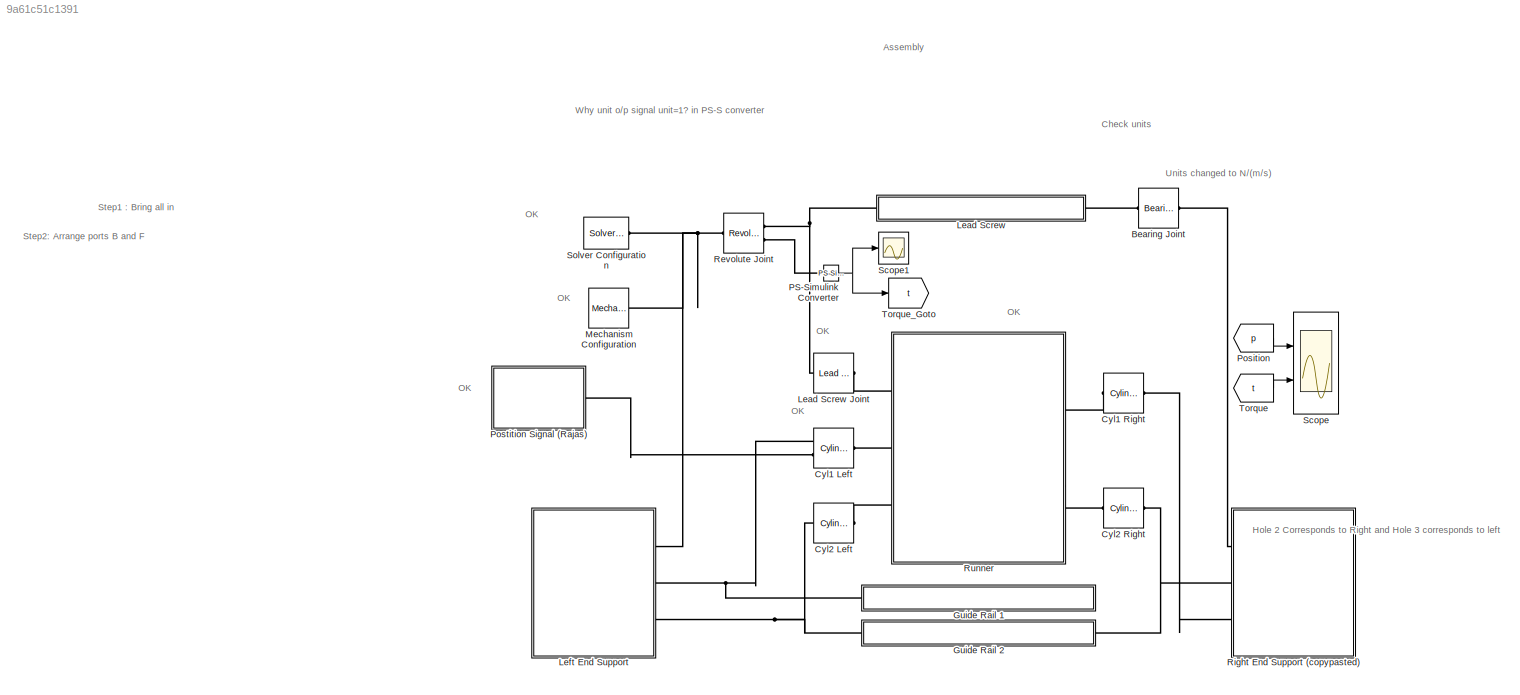
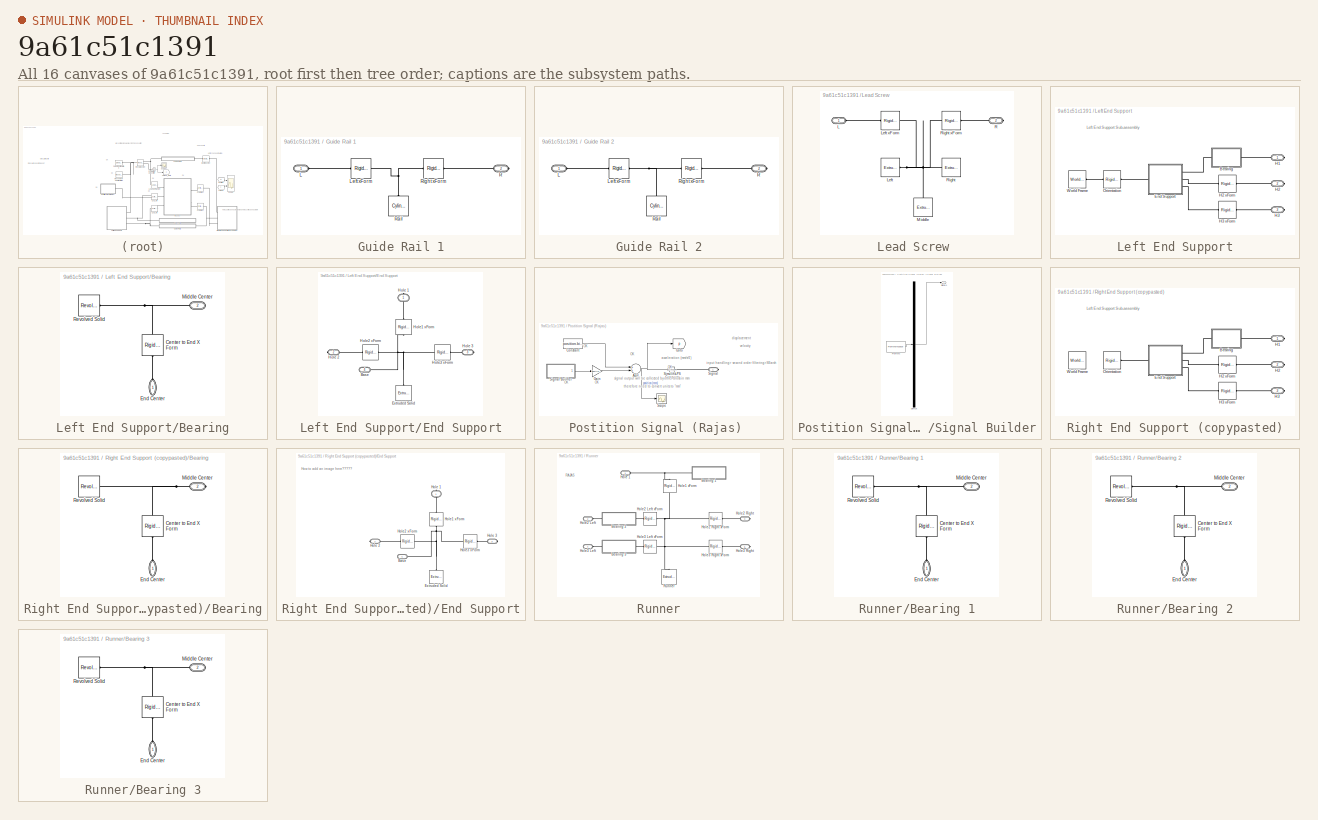
[diagram: thumbnail index - all 16 canvases of the model, root first then tree order]
MODEL slx_9a61c51c1391
KIND model
CONFIG AbsTol = auto
CONFIG EnableMultiTasking = off
CONFIG FixedStep = auto
CONFIG MaxStep = auto
CONFIG MinStep = auto
CONFIG RelTol = 1e-3
CONFIG SampleTimeConstraint = Unconstrained
CONFIG Solver = VariableStepAuto
CONFIG SolverName = VariableStepAuto
CONFIG StartTime = 0.0
CONFIG StopTime = 10.0
BLOCK [Reference] Bearing Joint  REF=sm_lib/Joints/Bearing Joint
  Ports = [0, 0, 0, 0, 0, 1, 1]
  SourceBlock = sm_lib/Joints/Bearing Joint
  SourceProductBaseCode = MS
  SourceProductName = Simscape Multibody
  SourceType = Bearing Joint
BLOCK [Reference] Cyl1 Left  REF=sm_lib/Joints/Cylindrical
Joint
  Ports = [0, 0, 0, 0, 0, 2, 1]
  SourceBlock = sm_lib/Joints/Cylindrical\nJoint
  SourceProductBaseCode = MS
  SourceProductName = Simscape Multibody
  SourceType = Cylindrical\nJoint
BLOCK [Reference] Cyl1 Right  REF=sm_lib/Joints/Cylindrical
Joint
  Ports = [0, 0, 0, 0, 0, 1, 1]
  SourceBlock = sm_lib/Joints/Cylindrical\nJoint
  SourceProductBaseCode = MS
  SourceProductName = Simscape Multibody
  SourceType = Cylindrical\nJoint
BLOCK [Reference] Cyl2 Left  REF=sm_lib/Joints/Cylindrical
Joint
  Ports = [0, 0, 0, 0, 0, 1, 1]
  SourceBlock = sm_lib/Joints/Cylindrical\nJoint
  SourceProductBaseCode = MS
  SourceProductName = Simscape Multibody
  SourceType = Cylindrical\nJoint
BLOCK [Reference] Cyl2 Right  REF=sm_lib/Joints/Cylindrical
Joint
  Ports = [0, 0, 0, 0, 0, 1, 1]
  SourceBlock = sm_lib/Joints/Cylindrical\nJoint
  SourceProductBaseCode = MS
  SourceProductName = Simscape Multibody
  SourceType = Cylindrical\nJoint
BLOCK [SubSystem] Guide Rail 1
  Ports = [0, 0, 0, 0, 0, 1, 1]
  RequestExecContextInheritance = off
BLOCK [PMIOPort] Guide Rail 1/L
  Side = Left
BLOCK [Reference] Guide Rail 1/Left xForm  REF=sm_lib/Frames and
Transforms/Rigid
Transform
  Ports = [0, 0, 0, 0, 0, 1, 1]
  SourceBlock = sm_lib/Frames and\nTransforms/Rigid\nTransform
  SourceProductBaseCode = MS
  SourceProductName = Simscape Multibody
  SourceType = Rigid\nTransform
BLOCK [PMIOPort] Guide Rail 1/R
  Port = 2
  Side = Right
BLOCK [Reference] Guide Rail 1/Rail  REF=sm_lib/Body Elements/Cylindrical Solid
  Ports = [0, 0, 0, 0, 0, 0, 1]
  SourceBlock = sm_lib/Body Elements/Cylindrical Solid
  SourceProductBaseCode = MS
  SourceProductName = Simscape Multibody
  SourceType = Cylindrical Solid
BLOCK [Reference] Guide Rail 1/Right xForm   REF=sm_lib/Frames and
Transforms/Rigid
Transform
  Ports = [0, 0, 0, 0, 0, 1, 1]
  SourceBlock = sm_lib/Frames and\nTransforms/Rigid\nTransform
  SourceProductBaseCode = MS
  SourceProductName = Simscape Multibody
  SourceType = Rigid\nTransform
BLOCK [SubSystem] Guide Rail 2
  Ports = [0, 0, 0, 0, 0, 1, 1]
  RequestExecContextInheritance = off
BLOCK [PMIOPort] Guide Rail 2/L
  Side = Left
BLOCK [Reference] Guide Rail 2/Left xForm  REF=sm_lib/Frames and
Transforms/Rigid
Transform
  Ports = [0, 0, 0, 0, 0, 1, 1]
  SourceBlock = sm_lib/Frames and\nTransforms/Rigid\nTransform
  SourceProductBaseCode = MS
  SourceProductName = Simscape Multibody
  SourceType = Rigid\nTransform
BLOCK [PMIOPort] Guide Rail 2/R
  Port = 2
  Side = Right
BLOCK [Reference] Guide Rail 2/Rail  REF=sm_lib/Body Elements/Cylindrical Solid
  Ports = [0, 0, 0, 0, 0, 0, 1]
  SourceBlock = sm_lib/Body Elements/Cylindrical Solid
  SourceProductBaseCode = MS
  SourceProductName = Simscape Multibody
  SourceType = Cylindrical Solid
BLOCK [Reference] Guide Rail 2/Right xForm   REF=sm_lib/Frames and
Transforms/Rigid
Transform
  Ports = [0, 0, 0, 0, 0, 1, 1]
  SourceBlock = sm_lib/Frames and\nTransforms/Rigid\nTransform
  SourceProductBaseCode = MS
  SourceProductName = Simscape Multibody
  SourceType = Rigid\nTransform
BLOCK [SubSystem] Lead Screw 
  Ports = [0, 0, 0, 0, 0, 1, 1]
  RequestExecContextInheritance = off
BLOCK [PMIOPort] Lead Screw /L 
  Side = Left
BLOCK [Reference] Lead Screw /Left   REF=sm_lib/Body Elements/Extruded Solid
  Ports = [0, 0, 0, 0, 0, 0, 1]
  SourceBlock = sm_lib/Body Elements/Extruded Solid
  SourceProductBaseCode = MS
  SourceProductName = Simscape Multibody
  SourceType = Extruded Solid
BLOCK [Reference] Lead Screw /Left xForm  REF=sm_lib/Frames and
Transforms/Rigid
Transform
  Ports = [0, 0, 0, 0, 0, 1, 1]
  SourceBlock = sm_lib/Frames and\nTransforms/Rigid\nTransform
  SourceProductBaseCode = MS
  SourceProductName = Simscape Multibody
  SourceType = Rigid\nTransform
BLOCK [Reference] Lead Screw /Middle  REF=sm_lib/Body Elements/Extruded Solid
  Ports = [0, 0, 0, 0, 0, 0, 1]
  SourceBlock = sm_lib/Body Elements/Extruded Solid
  SourceProductBaseCode = MS
  SourceProductName = Simscape Multibody
  SourceType = Extruded Solid
BLOCK [PMIOPort] Lead Screw /R 
  Port = 2
  Side = Right
BLOCK [Reference] Lead Screw /Right   REF=sm_lib/Body Elements/Extruded Solid
  Ports = [0, 0, 0, 0, 0, 0, 1]
  SourceBlock = sm_lib/Body Elements/Extruded Solid
  SourceProductBaseCode = MS
  SourceProductName = Simscape Multibody
  SourceType = Extruded Solid
BLOCK [Reference] Lead Screw /Right xForm   REF=sm_lib/Frames and
Transforms/Rigid
Transform
  Ports = [0, 0, 0, 0, 0, 1, 1]
  SourceBlock = sm_lib/Frames and\nTransforms/Rigid\nTransform
  SourceProductBaseCode = MS
  SourceProductName = Simscape Multibody
  SourceType = Rigid\nTransform
BLOCK [Reference] Lead Screw Joint  REF=sm_lib/Joints/Lead Screw
Joint
  Ports = [0, 0, 0, 0, 0, 1, 1]
  SourceBlock = sm_lib/Joints/Lead Screw\nJoint
  SourceProductBaseCode = MS
  SourceProductName = Simscape Multibody
  SourceType = Lead Screw\nJoint
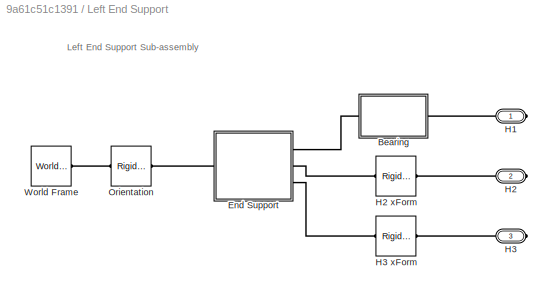
BLOCK [SubSystem] Left End Support
  Ports = [0, 0, 0, 0, 0, 0, 3]
  RequestExecContextInheritance = off
BLOCK [SubSystem] Left End Support/Bearing
  Ports = [0, 0, 0, 0, 0, 1, 1]
  RequestExecContextInheritance = off
BLOCK [Reference] Left End Support/Bearing/Center to End X Form  REF=sm_lib/Frames and
Transforms/Rigid
Transform
  Ports = [0, 0, 0, 0, 0, 1, 1]
  SourceBlock = sm_lib/Frames and\nTransforms/Rigid\nTransform
  SourceProductBaseCode = MS
  SourceProductName = Simscape Multibody
  SourceType = Rigid\nTransform
BLOCK [PMIOPort] Left End Support/Bearing/End Center
  Side = Left
BLOCK [PMIOPort] Left End Support/Bearing/Middle Center
  Port = 2
  Side = Right
BLOCK [Reference] Left End Support/Bearing/Revolved Solid  REF=sm_lib/Body Elements/Revolved Solid
  Ports = [0, 0, 0, 0, 0, 0, 1]
  SourceBlock = sm_lib/Body Elements/Revolved Solid
  SourceProductBaseCode = MS
  SourceProductName = Simscape Multibody
  SourceType = Revolved Solid
BLOCK [SubSystem] Left End Support/End Support
  Ports = [0, 0, 0, 0, 0, 1, 3]
  RequestExecContextInheritance = off
BLOCK [PMIOPort] Left End Support/End Support/Base
  Port = 4
  Side = Left
BLOCK [Reference] Left End Support/End Support/Extruded Solid  REF=sm_lib/Body Elements/Extruded Solid
  Ports = [0, 0, 0, 0, 0, 0, 1]
  SourceBlock = sm_lib/Body Elements/Extruded Solid
  SourceProductBaseCode = MS
  SourceProductName = Simscape Multibody
  SourceType = Extruded Solid
BLOCK [PMIOPort] Left End Support/End Support/Hole 1
  Side = Right
BLOCK [PMIOPort] Left End Support/End Support/Hole 2
  Port = 2
  Side = Right
BLOCK [PMIOPort] Left End Support/End Support/Hole 3
  Port = 3
  Side = Right
BLOCK [Reference] Left End Support/End Support/Hole1 xForm  REF=sm_lib/Frames and
Transforms/Rigid
Transform
  Ports = [0, 0, 0, 0, 0, 1, 1]
  SourceBlock = sm_lib/Frames and\nTransforms/Rigid\nTransform
  SourceProductBaseCode = MS
  SourceProductName = Simscape Multibody
  SourceType = Rigid\nTransform
BLOCK [Reference] Left End Support/End Support/Hole2 xForm  REF=sm_lib/Frames and
Transforms/Rigid
Transform
  Ports = [0, 0, 0, 0, 0, 1, 1]
  SourceBlock = sm_lib/Frames and\nTransforms/Rigid\nTransform
  SourceProductBaseCode = MS
  SourceProductName = Simscape Multibody
  SourceType = Rigid\nTransform
BLOCK [Reference] Left End Support/End Support/Hole3 xForm  REF=sm_lib/Frames and
Transforms/Rigid
Transform
  Ports = [0, 0, 0, 0, 0, 1, 1]
  SourceBlock = sm_lib/Frames and\nTransforms/Rigid\nTransform
  SourceProductBaseCode = MS
  SourceProductName = Simscape Multibody
  SourceType = Rigid\nTransform
BLOCK [PMIOPort] Left End Support/H1
  Side = Right
BLOCK [PMIOPort] Left End Support/H2
  Port = 2
  Side = Right
BLOCK [Reference] Left End Support/H2 xForm  REF=sm_lib/Frames and
Transforms/Rigid
Transform
  Ports = [0, 0, 0, 0, 0, 1, 1]
  SourceBlock = sm_lib/Frames and\nTransforms/Rigid\nTransform
  SourceProductBaseCode = MS
  SourceProductName = Simscape Multibody
  SourceType = Rigid\nTransform
BLOCK [PMIOPort] Left End Support/H3
  Port = 3
  Side = Right
BLOCK [Reference] Left End Support/H3 xForm  REF=sm_lib/Frames and
Transforms/Rigid
Transform
  Ports = [0, 0, 0, 0, 0, 1, 1]
  SourceBlock = sm_lib/Frames and\nTransforms/Rigid\nTransform
  SourceProductBaseCode = MS
  SourceProductName = Simscape Multibody
  SourceType = Rigid\nTransform
BLOCK [Reference] Left End Support/Orientation  REF=sm_lib/Frames and
Transforms/Rigid
Transform
  Ports = [0, 0, 0, 0, 0, 1, 1]
  SourceBlock = sm_lib/Frames and\nTransforms/Rigid\nTransform
  SourceProductBaseCode = MS
  SourceProductName = Simscape Multibody
  SourceType = Rigid\nTransform
BLOCK [Reference] Left End Support/World Frame  REF=sm_lib/Frames and
Transforms/World Frame
  Ports = [0, 0, 0, 0, 0, 0, 1]
  SourceBlock = sm_lib/Frames and\nTransforms/World Frame
  SourceProductBaseCode = MS
  SourceProductName = Simscape Multibody
  SourceType = World Frame
BLOCK [Reference] Mechanism Configuration  REF=sm_lib/Utilities/Mechanism
Configuration
  Ports = [0, 0, 0, 0, 0, 0, 1]
  SourceBlock = sm_lib/Utilities/Mechanism\nConfiguration
  SourceProductBaseCode = MS
  SourceProductName = Simscape Multibody
  SourceType = Mechanism\nConfiguration
BLOCK [Reference] PS-Simulink Converter  REF=nesl_utility/PS-Simulink
Converter
  Ports = [0, 1, 0, 0, 0, 1]
  SourceBlock = nesl_utility/PS-Simulink\nConverter
  SourceProductBaseCode = SS
  SourceProductName = Simscape
  SourceType = PS-Simulink\nConverter
BLOCK [From] Position
  GotoTag = p
  TagVisibility = global
BLOCK [SubSystem] Postition Signal (Rajas) 
  Ports = [0, 0, 0, 0, 0, 0, 1]
  RequestExecContextInheritance = off
BLOCK [Sum] Postition Signal (Rajas) /Add
  InputSameDT = off
  OutDataTypeStr = Inherit: Inherit via internal rule
  Ports = [2, 1]
  SaturateOnIntegerOverflow = off
BLOCK [Constant] Postition Signal (Rajas) /Constant
  Value = position.bias
BLOCK [Gain] Postition Signal (Rajas) /Gain
  Gain = position.amplitude
  OutDataTypeStr = Inherit: Inherit via internal rule
  ParamDataTypeStr = Inherit: Inherit via internal rule
  SaturateOnIntegerOverflow = off
BLOCK [Goto] Postition Signal (Rajas) /Goto
  GotoTag = p
  TagVisibility = global
BLOCK [Scope] Postition Signal (Rajas) /Scope
  Floating = off
  NumInputPorts = 1
  Ports = [1]
  ScopeSpecificationString = Simulink.scopes.TimeScopeBlockCfg('CurrentConfiguration', extmgr.ConfigurationSet(extmgr.Configuration('Core','General UI',true),extmgr.Configuration('Core','Source UI',true),extmgr.Configuration('Sources','WiredSimulink',true,'DataLoggingVariableName','ScopeData1'),extmgr.Configuration('Visuals','Time Domain',true,'SerializedDisplays',{struct('MinYLimReal','0','MaxYLimReal','450','YLabelReal','',...<+1334ch>
BLOCK [PMIOPort] Postition Signal (Rajas) /Signal
  Side = Right
BLOCK [SubSystem] Postition Signal (Rajas) /Signal Builder
  ClipboardFcn = sigbuilder_block('clipboard');
  CloseFcn = sigbuilder_block('close');
  ContinueFcn = sigbuilder_block('continue');
  CopyFcn = sigbuilder_block('copy');
  DeleteFcn = sigbuilder_block('delete');
  LoadFcn = sigbuilder_block('load');
  MaskHideContents = on
  ModelCloseFcn = sigbuilder_block('modelClose');
  NameChangeFcn = sigbuilder_block('namechange');
  OpenFcn = sigbuilder_block('open',[-1.2 161.4 550.8 283.2 ]);
  PauseFcn = sigbuilder_block('pause');
  Ports = [0, 1]
  PreSaveFcn = sigbuilder_block('preSave');
  RequestExecContextInheritance = off
  StartFcn = sigbuilder_block('start');
  StopFcn = sigbuilder_block('stop');
  Tag = STV Subsys
BLOCK [Demux] Postition Signal (Rajas) /Signal Builder/Demux
  Outputs = 1
  Ports = [1, 1]
  Tag = STV Demux
BLOCK [FromWorkspace] Postition Signal (Rajas) /Signal Builder/FromWs
  SampleTime = 0
  Tag = STV FromWs
  VariableName = tuvar
  ZeroCross = on
BLOCK [Outport] Postition Signal (Rajas) /Signal Builder/Signal 1
  IconDisplay = Port number
  Tag = STV Outport
BLOCK [Reference] Postition Signal (Rajas) /Simulink-PS Converter  REF=nesl_utility/Simulink-PS
Converter
  Ports = [1, 0, 0, 0, 0, 0, 1]
  SourceBlock = nesl_utility/Simulink-PS\nConverter
  SourceProductBaseCode = SS
  SourceProductName = Simscape
  SourceType = Simulink-PS\nConverter
BLOCK [Reference] Revolute Joint  REF=sm_lib/Joints/Revolute Joint
  Ports = [0, 0, 0, 0, 0, 1, 2]
  SourceBlock = sm_lib/Joints/Revolute Joint
  SourceProductBaseCode = MS
  SourceProductName = Simscape Multibody
  SourceType = Revolute Joint
BLOCK [SubSystem] Right End Support (copypasted)
  Ports = [0, 0, 0, 0, 0, 0, 3]
  RequestExecContextInheritance = off
BLOCK [SubSystem] Right End Support (copypasted)/Bearing
  Ports = [0, 0, 0, 0, 0, 1, 1]
  RequestExecContextInheritance = off
BLOCK [Reference] Right End Support (copypasted)/Bearing/Center to End X Form  REF=sm_lib/Frames and
Transforms/Rigid
Transform
  Ports = [0, 0, 0, 0, 0, 1, 1]
  SourceBlock = sm_lib/Frames and\nTransforms/Rigid\nTransform
  SourceProductBaseCode = MS
  SourceProductName = Simscape Multibody
  SourceType = Rigid\nTransform
BLOCK [PMIOPort] Right End Support (copypasted)/Bearing/End Center
  Side = Left
BLOCK [PMIOPort] Right End Support (copypasted)/Bearing/Middle Center
  Port = 2
  Side = Right
BLOCK [Reference] Right End Support (copypasted)/Bearing/Revolved Solid  REF=sm_lib/Body Elements/Revolved Solid
  Ports = [0, 0, 0, 0, 0, 0, 1]
  SourceBlock = sm_lib/Body Elements/Revolved Solid
  SourceProductBaseCode = MS
  SourceProductName = Simscape Multibody
  SourceType = Revolved Solid
BLOCK [SubSystem] Right End Support (copypasted)/End Support
  Ports = [0, 0, 0, 0, 0, 1, 3]
  RequestExecContextInheritance = off
BLOCK [PMIOPort] Right End Support (copypasted)/End Support/Base
  Port = 4
  Side = Left
BLOCK [Reference] Right End Support (copypasted)/End Support/Extruded Solid  REF=sm_lib/Body Elements/Extruded Solid
  Ports = [0, 0, 0, 0, 0, 0, 1]
  SourceBlock = sm_lib/Body Elements/Extruded Solid
  SourceProductBaseCode = MS
  SourceProductName = Simscape Multibody
  SourceType = Extruded Solid
BLOCK [PMIOPort] Right End Support (copypasted)/End Support/Hole 1
  Side = Right
BLOCK [PMIOPort] Right End Support (copypasted)/End Support/Hole 2
  Port = 2
  Side = Right
BLOCK [PMIOPort] Right End Support (copypasted)/End Support/Hole 3
  Port = 3
  Side = Right
BLOCK [Reference] Right End Support (copypasted)/End Support/Hole1 xForm  REF=sm_lib/Frames and
Transforms/Rigid
Transform
  Ports = [0, 0, 0, 0, 0, 1, 1]
  SourceBlock = sm_lib/Frames and\nTransforms/Rigid\nTransform
  SourceProductBaseCode = MS
  SourceProductName = Simscape Multibody
  SourceType = Rigid\nTransform
BLOCK [Reference] Right End Support (copypasted)/End Support/Hole2 xForm  REF=sm_lib/Frames and
Transforms/Rigid
Transform
  Ports = [0, 0, 0, 0, 0, 1, 1]
  SourceBlock = sm_lib/Frames and\nTransforms/Rigid\nTransform
  SourceProductBaseCode = MS
  SourceProductName = Simscape Multibody
  SourceType = Rigid\nTransform
BLOCK [Reference] Right End Support (copypasted)/End Support/Hole3 xForm  REF=sm_lib/Frames and
Transforms/Rigid
Transform
  Ports = [0, 0, 0, 0, 0, 1, 1]
  SourceBlock = sm_lib/Frames and\nTransforms/Rigid\nTransform
  SourceProductBaseCode = MS
  SourceProductName = Simscape Multibody
  SourceType = Rigid\nTransform
BLOCK [PMIOPort] Right End Support (copypasted)/H1
  Side = Right
BLOCK [PMIOPort] Right End Support (copypasted)/H2
  Port = 2
  Side = Right
BLOCK [Reference] Right End Support (copypasted)/H2 xForm  REF=sm_lib/Frames and
Transforms/Rigid
Transform
  Ports = [0, 0, 0, 0, 0, 1, 1]
  SourceBlock = sm_lib/Frames and\nTransforms/Rigid\nTransform
  SourceProductBaseCode = MS
  SourceProductName = Simscape Multibody
  SourceType = Rigid\nTransform
BLOCK [PMIOPort] Right End Support (copypasted)/H3
  Port = 3
  Side = Right
BLOCK [Reference] Right End Support (copypasted)/H3 xForm  REF=sm_lib/Frames and
Transforms/Rigid
Transform
  Ports = [0, 0, 0, 0, 0, 1, 1]
  SourceBlock = sm_lib/Frames and\nTransforms/Rigid\nTransform
  SourceProductBaseCode = MS
  SourceProductName = Simscape Multibody
  SourceType = Rigid\nTransform
BLOCK [Reference] Right End Support (copypasted)/Orientation  REF=sm_lib/Frames and
Transforms/Rigid
Transform
  Ports = [0, 0, 0, 0, 0, 1, 1]
  SourceBlock = sm_lib/Frames and\nTransforms/Rigid\nTransform
  SourceProductBaseCode = MS
  SourceProductName = Simscape Multibody
  SourceType = Rigid\nTransform
BLOCK [Reference] Right End Support (copypasted)/World Frame  REF=sm_lib/Frames and
Transforms/World Frame
  Ports = [0, 0, 0, 0, 0, 0, 1]
  SourceBlock = sm_lib/Frames and\nTransforms/World Frame
  SourceProductBaseCode = MS
  SourceProductName = Simscape Multibody
  SourceType = World Frame
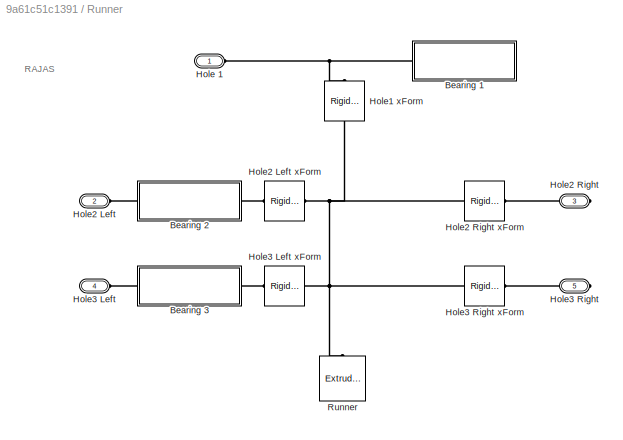
BLOCK [SubSystem] Runner
  Ports = [0, 0, 0, 0, 0, 3, 2]
  RequestExecContextInheritance = off
BLOCK [SubSystem] Runner/Bearing 1
  Ports = [0, 0, 0, 0, 0, 1, 1]
  RequestExecContextInheritance = off
BLOCK [Reference] Runner/Bearing 1/Center to End X Form  REF=sm_lib/Frames and
Transforms/Rigid
Transform
  Ports = [0, 0, 0, 0, 0, 1, 1]
  SourceBlock = sm_lib/Frames and\nTransforms/Rigid\nTransform
  SourceProductBaseCode = MS
  SourceProductName = Simscape Multibody
  SourceType = Rigid\nTransform
BLOCK [PMIOPort] Runner/Bearing 1/End Center
  Side = Left
BLOCK [PMIOPort] Runner/Bearing 1/Middle Center
  Port = 2
  Side = Right
BLOCK [Reference] Runner/Bearing 1/Revolved Solid  REF=sm_lib/Body Elements/Revolved Solid
  Ports = [0, 0, 0, 0, 0, 0, 1]
  SourceBlock = sm_lib/Body Elements/Revolved Solid
  SourceProductBaseCode = MS
  SourceProductName = Simscape Multibody
  SourceType = Revolved Solid
BLOCK [SubSystem] Runner/Bearing 2
  Ports = [0, 0, 0, 0, 0, 1, 1]
  RequestExecContextInheritance = off
BLOCK [Reference] Runner/Bearing 2/Center to End X Form  REF=sm_lib/Frames and
Transforms/Rigid
Transform
  Ports = [0, 0, 0, 0, 0, 1, 1]
  SourceBlock = sm_lib/Frames and\nTransforms/Rigid\nTransform
  SourceProductBaseCode = MS
  SourceProductName = Simscape Multibody
  SourceType = Rigid\nTransform
BLOCK [PMIOPort] Runner/Bearing 2/End Center
  Side = Left
BLOCK [PMIOPort] Runner/Bearing 2/Middle Center
  Port = 2
  Side = Right
BLOCK [Reference] Runner/Bearing 2/Revolved Solid  REF=sm_lib/Body Elements/Revolved Solid
  Ports = [0, 0, 0, 0, 0, 0, 1]
  SourceBlock = sm_lib/Body Elements/Revolved Solid
  SourceProductBaseCode = MS
  SourceProductName = Simscape Multibody
  SourceType = Revolved Solid
BLOCK [SubSystem] Runner/Bearing 3
  Ports = [0, 0, 0, 0, 0, 1, 1]
  RequestExecContextInheritance = off
BLOCK [Reference] Runner/Bearing 3/Center to End X Form  REF=sm_lib/Frames and
Transforms/Rigid
Transform
  Ports = [0, 0, 0, 0, 0, 1, 1]
  SourceBlock = sm_lib/Frames and\nTransforms/Rigid\nTransform
  SourceProductBaseCode = MS
  SourceProductName = Simscape Multibody
  SourceType = Rigid\nTransform
BLOCK [PMIOPort] Runner/Bearing 3/End Center
  Side = Left
BLOCK [PMIOPort] Runner/Bearing 3/Middle Center
  Port = 2
  Side = Right
BLOCK [Reference] Runner/Bearing 3/Revolved Solid  REF=sm_lib/Body Elements/Revolved Solid
  Ports = [0, 0, 0, 0, 0, 0, 1]
  SourceBlock = sm_lib/Body Elements/Revolved Solid
  SourceProductBaseCode = MS
  SourceProductName = Simscape Multibody
  SourceType = Revolved Solid
BLOCK [PMIOPort] Runner/Hole 1
  Side = Left
BLOCK [Reference] Runner/Hole1 xForm  REF=sm_lib/Frames and
Transforms/Rigid
Transform
  Ports = [0, 0, 0, 0, 0, 1, 1]
  SourceBlock = sm_lib/Frames and\nTransforms/Rigid\nTransform
  SourceProductBaseCode = MS
  SourceProductName = Simscape Multibody
  SourceType = Rigid\nTransform
BLOCK [PMIOPort] Runner/Hole2 Left
  Port = 2
  Side = Left
BLOCK [Reference] Runner/Hole2 Left xForm  REF=sm_lib/Frames and
Transforms/Rigid
Transform
  Ports = [0, 0, 0, 0, 0, 1, 1]
  SourceBlock = sm_lib/Frames and\nTransforms/Rigid\nTransform
  SourceProductBaseCode = MS
  SourceProductName = Simscape Multibody
  SourceType = Rigid\nTransform
BLOCK [PMIOPort] Runner/Hole2 Right
  Port = 3
  Side = Right
BLOCK [Reference] Runner/Hole2 Right xForm  REF=sm_lib/Frames and
Transforms/Rigid
Transform
  Ports = [0, 0, 0, 0, 0, 1, 1]
  SourceBlock = sm_lib/Frames and\nTransforms/Rigid\nTransform
  SourceProductBaseCode = MS
  SourceProductName = Simscape Multibody
  SourceType = Rigid\nTransform
BLOCK [PMIOPort] Runner/Hole3 Left
  Port = 4
  Side = Left
BLOCK [Reference] Runner/Hole3 Left xForm  REF=sm_lib/Frames and
Transforms/Rigid
Transform
  Ports = [0, 0, 0, 0, 0, 1, 1]
  SourceBlock = sm_lib/Frames and\nTransforms/Rigid\nTransform
  SourceProductBaseCode = MS
  SourceProductName = Simscape Multibody
  SourceType = Rigid\nTransform
BLOCK [PMIOPort] Runner/Hole3 Right
  Port = 5
  Side = Right
BLOCK [Reference] Runner/Hole3 Right xForm  REF=sm_lib/Frames and
Transforms/Rigid
Transform
  Ports = [0, 0, 0, 0, 0, 1, 1]
  SourceBlock = sm_lib/Frames and\nTransforms/Rigid\nTransform
  SourceProductBaseCode = MS
  SourceProductName = Simscape Multibody
  SourceType = Rigid\nTransform
BLOCK [Reference] Runner/Runner  REF=sm_lib/Body Elements/Extruded Solid
  Ports = [0, 0, 0, 0, 0, 0, 1]
  SourceBlock = sm_lib/Body Elements/Extruded Solid
  SourceProductBaseCode = MS
  SourceProductName = Simscape Multibody
  SourceType = Extruded Solid
BLOCK [Scope] Scope
  Floating = off
  NumInputPorts = 2
  Ports = [2]
  ScopeSpecificationString = Simulink.scopes.TimeScopeBlockCfg('CurrentConfiguration', extmgr.ConfigurationSet(extmgr.Configuration('Core','General UI',true),extmgr.Configuration('Core','Source UI',true),extmgr.Configuration('Sources','WiredSimulink',true),extmgr.Configuration('Visuals','Time Domain',true,'SerializedDisplays',{struct('MinYLimReal','-10','MaxYLimReal','10','YLabelReal','','MinYLimMag','0','MaxYLimMag','10','Le...<+1984ch>
BLOCK [Scope] Scope1
  Floating = off
  NumInputPorts = 1
  Ports = [1]
  ScopeSpecificationString = Simulink.scopes.TimeScopeBlockCfg('CurrentConfiguration', extmgr.ConfigurationSet(extmgr.Configuration('Core','General UI',true),extmgr.Configuration('Core','Source UI',true),extmgr.Configuration('Sources','WiredSimulink',true,'DataLoggingVariableName','ScopeData2'),extmgr.Configuration('Visuals','Time Domain',true,'SerializedDisplays',{struct('MinYLimReal','-10','MaxYLimReal','10','YLabelReal',''...<+781ch>
BLOCK [Reference] Solver Configuration  REF=nesl_utility/Solver
Configuration
  Ports = [0, 0, 0, 0, 0, 0, 1]
  SourceBlock = nesl_utility/Solver\nConfiguration
  SourceProductBaseCode = SS
  SourceProductName = Simscape
  SourceType = Solver\nConfiguration
BLOCK [From] Torque
  GotoTag = t
BLOCK [Goto] Torque_Goto
  GotoTag = t
ANNOTATION (root): Assembly
ANNOTATION (root): Check units
ANNOTATION (root): Hole 2 Corresponds to Right and Hole 3 corresponds to left
ANNOTATION (root): OK
ANNOTATION (root): Step1 : Bring all in
ANNOTATION (root): Step2: Arrange ports B and F
ANNOTATION (root): Units changed to N/(m/s)
ANNOTATION (root): Why unit o/p signal unit=1? in PS-S converter
ANNOTATION Left End Support: Left End Support Sub-assembly
ANNOTATION Postition Signal (Rajas) : OK
ANNOTATION Postition Signal (Rajas) : acceleration (mm/s^2)
ANNOTATION Postition Signal (Rajas) : displacement
ANNOTATION Postition Signal (Rajas) : input handling> second order filtering>SEarch
ANNOTATION Postition Signal (Rajas) : signal output will be collected by other block in mm
ANNOTATION Postition Signal (Rajas) : therefore need to convert units to "mm"
ANNOTATION Postition Signal (Rajas) : velocity
ANNOTATION Right End Support (copypasted): Left End Support Sub-assembly
ANNOTATION Right End Support (copypasted)/End Support: How to add an image here?????
ANNOTATION Runner: RAJAS
NET PS-Simulink Converter:1 -> Scope1:1, Torque_Goto:1
LINE Position:1 -> Scope:1
NET Postition Signal (Rajas) /Add:1 -> Postition Signal (Rajas) /Goto:1, Postition Signal (Rajas) /Scope:1, Postition Signal (Rajas) /Simulink-PS Converter:1
LINE Postition Signal (Rajas) /Constant:1 -> Postition Signal (Rajas) /Add:1
LINE Postition Signal (Rajas) /Gain:1 -> Postition Signal (Rajas) /Add:2
LINE Postition Signal (Rajas) /Signal Builder:1 -> Postition Signal (Rajas) /Gain:1
LINE Torque:1 -> Scope:2
PLINE Bearing Joint:LConn1 -- Right End Support (copypasted):RConn1
PLINE Bearing Joint:RConn1 -- Lead Screw :RConn1
PNET net1: Cyl1 Left:LConn1 -- Guide Rail 1:LConn1 -- Left End Support:RConn2
PLINE Cyl1 Left:LConn2 -- Postition Signal (Rajas) :RConn1
PLINE Cyl1 Left:RConn1 -- Runner:LConn2
PLINE Cyl1 Right:LConn1 -- Right End Support (copypasted):RConn3
PLINE Cyl1 Right:RConn1 -- Runner:RConn1
PNET net2: Cyl2 Left:LConn1 -- Guide Rail 2:LConn1 -- Left End Support:RConn3
PLINE Cyl2 Left:RConn1 -- Runner:LConn3
PNET net3: Cyl2 Right:LConn1 -- Guide Rail 2:RConn1 -- Right End Support (copypasted):RConn2
PLINE Cyl2 Right:RConn1 -- Runner:RConn2
PLINE Guide Rail 1/L:RConn1 -- Guide Rail 1/Left xForm:RConn1
PNET net4: Guide Rail 1/Left xForm:LConn1 -- Guide Rail 1/Rail:RConn1 -- Guide Rail 1/Right xForm :LConn1
PLINE Guide Rail 1/R:RConn1 -- Guide Rail 1/Right xForm :RConn1
PLINE Guide Rail 2/L:RConn1 -- Guide Rail 2/Left xForm:RConn1
PNET net5: Guide Rail 2/Left xForm:LConn1 -- Guide Rail 2/Rail:RConn1 -- Guide Rail 2/Right xForm :LConn1
PLINE Guide Rail 2/R:RConn1 -- Guide Rail 2/Right xForm :RConn1
PLINE Lead Screw /L :RConn1 -- Lead Screw /Left xForm:RConn1
PNET net6: Lead Screw /Left :RConn1 -- Lead Screw /Left xForm:LConn1 -- Lead Screw /Middle:RConn1 -- Lead Screw /Right :RConn1 -- Lead Screw /Right xForm :LConn1
PLINE Lead Screw /R :RConn1 -- Lead Screw /Right xForm :RConn1
PNET net7: Lead Screw :LConn1 -- Lead Screw Joint:LConn1 -- Revolute Joint:RConn1
PLINE Lead Screw Joint:RConn1 -- Runner:LConn1
PNET net8: Left End Support/Bearing/Center to End X Form:LConn1 -- Left End Support/Bearing/Middle Center:RConn1 -- Left End Support/Bearing/Revolved Solid:RConn1
PLINE Left End Support/Bearing/Center to End X Form:RConn1 -- Left End Support/Bearing/End Center:RConn1
PLINE Left End Support/Bearing:LConn1 -- Left End Support/H1:RConn1
PLINE Left End Support/Bearing:RConn1 -- Left End Support/End Support:RConn1
PNET net9: Left End Support/End Support/Base:RConn1 -- Left End Support/End Support/Extruded Solid:RConn1 -- Left End Support/End Support/Hole1 xForm:LConn1 -- Left End Support/End Support/Hole2 xForm:LConn1 -- Left End Support/End Support/Hole3 xForm:LConn1
PLINE Left End Support/End Support/Hole 1:RConn1 -- Left End Support/End Support/Hole1 xForm:RConn1
PLINE Left End Support/End Support/Hole 2:RConn1 -- Left End Support/End Support/Hole2 xForm:RConn1
PLINE Left End Support/End Support/Hole 3:RConn1 -- Left End Support/End Support/Hole3 xForm:RConn1
PLINE Left End Support/End Support:LConn1 -- Left End Support/Orientation:RConn1
PLINE Left End Support/End Support:RConn2 -- Left End Support/H2 xForm:LConn1
PLINE Left End Support/End Support:RConn3 -- Left End Support/H3 xForm:LConn1
PLINE Left End Support/H2 xForm:RConn1 -- Left End Support/H2:RConn1
PLINE Left End Support/H3 xForm:RConn1 -- Left End Support/H3:RConn1
PLINE Left End Support/Orientation:LConn1 -- Left End Support/World Frame:RConn1
PNET net10: Left End Support:RConn1 -- Mechanism Configuration:RConn1 -- Revolute Joint:LConn1 -- Solver Configuration:RConn1
PLINE PS-Simulink Converter:LConn1 -- Revolute Joint:RConn2
PLINE Postition Signal (Rajas) /Signal:RConn1 -- Postition Signal (Rajas) /Simulink-PS Converter:RConn1
PNET net11: Right End Support (copypasted)/Bearing/Center to End X Form:LConn1 -- Right End Support (copypasted)/Bearing/Middle Center:RConn1 -- Right End Support (copypasted)/Bearing/Revolved Solid:RConn1
PLINE Right End Support (copypasted)/Bearing/Center to End X Form:RConn1 -- Right End Support (copypasted)/Bearing/End Center:RConn1
PLINE Right End Support (copypasted)/Bearing:LConn1 -- Right End Support (copypasted)/H1:RConn1
PLINE Right End Support (copypasted)/Bearing:RConn1 -- Right End Support (copypasted)/End Support:RConn1
PNET net12: Right End Support (copypasted)/End Support/Base:RConn1 -- Right End Support (copypasted)/End Support/Extruded Solid:RConn1 -- Right End Support (copypasted)/End Support/Hole1 xForm:LConn1 -- Right End Support (copypasted)/End Support/Hole2 xForm:LConn1 -- Right End Support (copypasted)/End Support/Hole3 xForm:LConn1
PLINE Right End Support (copypasted)/End Support/Hole 1:RConn1 -- Right End Support (copypasted)/End Support/Hole1 xForm:RConn1
PLINE Right End Support (copypasted)/End Support/Hole 2:RConn1 -- Right End Support (copypasted)/End Support/Hole2 xForm:RConn1
PLINE Right End Support (copypasted)/End Support/Hole 3:RConn1 -- Right End Support (copypasted)/End Support/Hole3 xForm:RConn1
PLINE Right End Support (copypasted)/End Support:LConn1 -- Right End Support (copypasted)/Orientation:RConn1
PLINE Right End Support (copypasted)/End Support:RConn2 -- Right End Support (copypasted)/H2 xForm:LConn1
PLINE Right End Support (copypasted)/End Support:RConn3 -- Right End Support (copypasted)/H3 xForm:LConn1
PLINE Right End Support (copypasted)/H2 xForm:RConn1 -- Right End Support (copypasted)/H2:RConn1
PLINE Right End Support (copypasted)/H3 xForm:RConn1 -- Right End Support (copypasted)/H3:RConn1
PNET net13: Runner/Bearing 1/Center to End X Form:LConn1 -- Runner/Bearing 1/Middle Center:RConn1 -- Runner/Bearing 1/Revolved Solid:RConn1
PLINE Runner/Bearing 1/Center to End X Form:RConn1 -- Runner/Bearing 1/End Center:RConn1
PNET net14: Runner/Bearing 1:RConn1 -- Runner/Hole 1:RConn1 -- Runner/Hole1 xForm:RConn1
PNET net15: Runner/Bearing 2/Center to End X Form:LConn1 -- Runner/Bearing 2/Middle Center:RConn1 -- Runner/Bearing 2/Revolved Solid:RConn1
PLINE Runner/Bearing 2/Center to End X Form:RConn1 -- Runner/Bearing 2/End Center:RConn1
PLINE Runner/Bearing 2:LConn1 -- Runner/Hole2 Left:RConn1
PLINE Runner/Bearing 2:RConn1 -- Runner/Hole2 Left xForm:RConn1
PNET net16: Runner/Bearing 3/Center to End X Form:LConn1 -- Runner/Bearing 3/Middle Center:RConn1 -- Runner/Bearing 3/Revolved Solid:RConn1
PLINE Runner/Bearing 3/Center to End X Form:RConn1 -- Runner/Bearing 3/End Center:RConn1
PLINE Runner/Bearing 3:LConn1 -- Runner/Hole3 Left:RConn1
PLINE Runner/Bearing 3:RConn1 -- Runner/Hole3 Left xForm:RConn1
PNET net17: Runner/Hole1 xForm:LConn1 -- Runner/Hole2 Left xForm:LConn1 -- Runner/Hole2 Right xForm:LConn1 -- Runner/Hole3 Left xForm:LConn1 -- Runner/Hole3 Right xForm:LConn1 -- Runner/Runner:RConn1
PLINE Runner/Hole2 Right xForm:RConn1 -- Runner/Hole2 Right:RConn1
PLINE Runner/Hole3 Right xForm:RConn1 -- Runner/Hole3 Right:RConn1
note: NET lines group one-source signal fan-out (src -> all destinations, sorted); 1:1 wires keep LINE; PNET lines group multi-terminal physical nets as a canonical sorted terminal list (undirected conserving connections); 2-terminal nets keep the pairwise PLINE form
